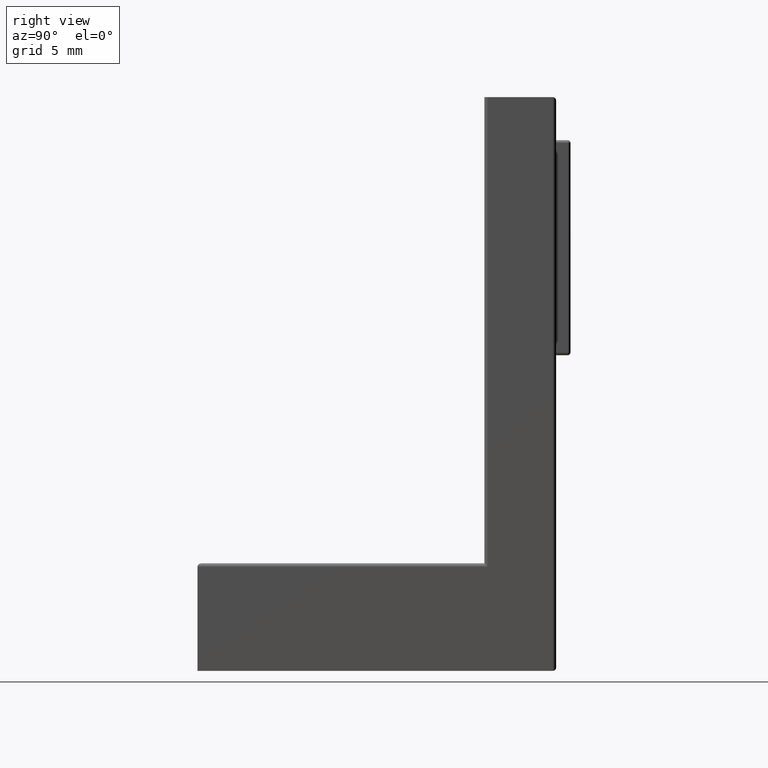
[diagram: clean part render]
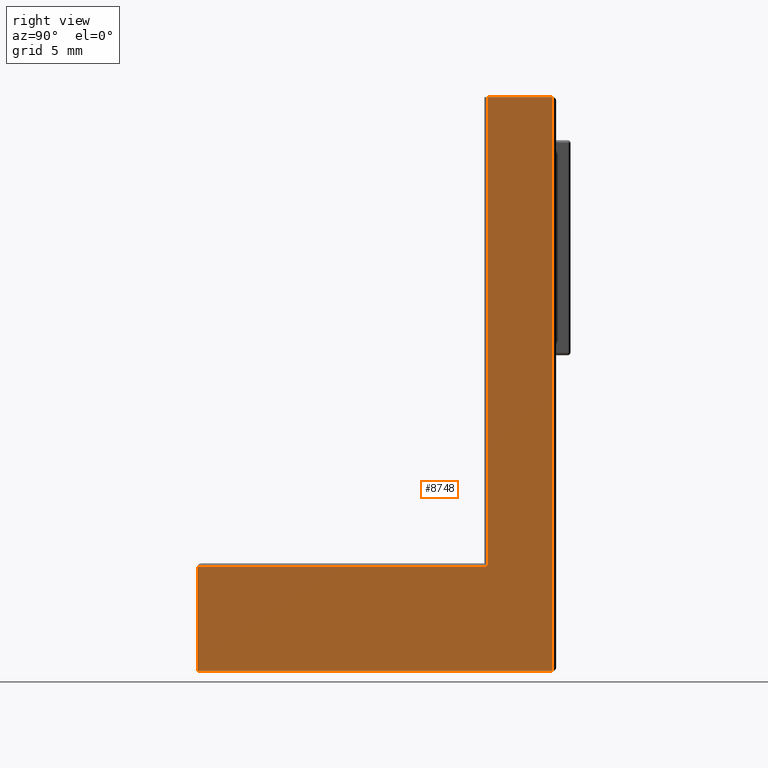
[diagram: same view with one face highlighted and labeled with its STEP entity id]
A machine part, right view. The second image highlights one B-rep face of the part: STEP entity #8748.
In plain terms, the highlighted planar face has unit normal (-1, 0, 0).
Its self-contained STEP definition (entity closure, byte-faithful):
#268 = EDGE_CURVE ( 'NONE', #6751, #10539, #9037, .T. ) ;
#351 = LINE ( 'NONE', #15017, #12426 ) ;
#473 = AXIS2_PLACEMENT_3D ( 'NONE', #12291, #11021, #768 ) ;
#640 = CARTESIAN_POINT ( 'NONE',  ( 9.000000000000000000, -25.00000000000000000, -3.061616997868383000E-015 ) ) ;
#768 = DIRECTION ( 'NONE',  ( 0.0000000000000000000, 0.0000000000000000000, 1.000000000000000000 ) ) ;
#1018 = CARTESIAN_POINT ( 'NONE',  ( 9.000000000000000000, 0.0000000000000000000, 0.0000000000000000000 ) ) ;
#1378 = CARTESIAN_POINT ( 'NONE',  ( 9.000000000000000000, -0.2500000000000000000, -3.061616997868383000E-017 ) ) ;
#1464 = LINE ( 'NONE', #3145, #11331 ) ;
#1817 = VERTEX_POINT ( 'NONE', #9101 ) ;
#1987 = CARTESIAN_POINT ( 'NONE',  ( 9.000000000000000000, -4.749999999999999100, 7.249999999999999100 ) ) ;
#2036 = EDGE_CURVE ( 'NONE', #2319, #6751, #351, .T. ) ;
#2319 = VERTEX_POINT ( 'NONE', #1987 ) ;
#2391 = DIRECTION ( 'NONE',  ( -0.0000000000000000000, 1.000000000000000000, 1.224646799147353200E-016 ) ) ;
#3124 = CARTESIAN_POINT ( 'NONE',  ( 9.000000000000000000, -4.750000000000000000, 40.00000000000000000 ) ) ;
#3145 = CARTESIAN_POINT ( 'NONE',  ( 9.000000000000000000, -0.2500000000000000000, 0.0000000000000000000 ) ) ;
#3567 = CARTESIAN_POINT ( 'NONE',  ( 9.000000000000000000, -25.00000000000000000, 7.249999999999996400 ) ) ;
#3646 = VERTEX_POINT ( 'NONE', #3124 ) ;
#3838 = VERTEX_POINT ( 'NONE', #1378 ) ;
#4622 = DIRECTION ( 'NONE',  ( 0.0000000000000000000, 0.0000000000000000000, 1.000000000000000000 ) ) ;
#4631 = ORIENTED_EDGE ( 'NONE', *, *, #14013, .T. ) ;
#4905 = ORIENTED_EDGE ( 'NONE', *, *, #2036, .T. ) ;
#5414 = EDGE_CURVE ( 'NONE', #3838, #1817, #1464, .T. ) ;
#5987 = LINE ( 'NONE', #8271, #15022 ) ;
#6121 = PLANE ( 'NONE',  #473 ) ;
#6124 = ORIENTED_EDGE ( 'NONE', *, *, #15973, .T. ) ;
#6334 = LINE ( 'NONE', #1018, #14150 ) ;
#6555 = CARTESIAN_POINT ( 'NONE',  ( 9.000000000000000000, -5.000000000000000000, 40.00000000000000000 ) ) ;
#6751 = VERTEX_POINT ( 'NONE', #3567 ) ;
#8249 = FACE_OUTER_BOUND ( 'NONE', #13712, .T. ) ;
#8271 = CARTESIAN_POINT ( 'NONE',  ( 9.000000000000000000, -4.749999999999999100, -1.267682540136897100E-016 ) ) ;
#8345 = VECTOR ( 'NONE', #9145, 1000.000000000000000 ) ;
#8489 = ORIENTED_EDGE ( 'NONE', *, *, #13568, .T. ) ;
#8621 = VECTOR ( 'NONE', #13559, 1000.000000000000000 ) ;
#8748 = ADVANCED_FACE ( 'NONE', ( #8249 ), #6121, .F. ) ;
#9037 = LINE ( 'NONE', #9517, #8621 ) ;
#9101 = CARTESIAN_POINT ( 'NONE',  ( 9.000000000000000000, -0.2500000000000002200, 40.00000000000000000 ) ) ;
#9145 = DIRECTION ( 'NONE',  ( -0.0000000000000000000, -1.000000000000000000, -0.0000000000000000000 ) ) ;
#9517 = CARTESIAN_POINT ( 'NONE',  ( 9.000000000000000000, -25.00000000000000000, 7.499999999999996400 ) ) ;
#9943 = LINE ( 'NONE', #6555, #8345 ) ;
#10539 = VERTEX_POINT ( 'NONE', #640 ) ;
#11021 = DIRECTION ( 'NONE',  ( -1.000000000000000000, 0.0000000000000000000, 0.0000000000000000000 ) ) ;
#11331 = VECTOR ( 'NONE', #4622, 1000.000000000000000 ) ;
#12286 = DIRECTION ( 'NONE',  ( 0.0000000000000000000, 2.668805347656626100E-017, -1.000000000000000000 ) ) ;
#12291 = CARTESIAN_POINT ( 'NONE',  ( 9.000000000000000000, 0.0000000000000000000, 0.0000000000000000000 ) ) ;
#12426 = VECTOR ( 'NONE', #16403, 1000.000000000000000 ) ;
#12878 = ORIENTED_EDGE ( 'NONE', *, *, #5414, .T. ) ;
#13559 = DIRECTION ( 'NONE',  ( 0.0000000000000000000, 0.0000000000000000000, -1.000000000000000000 ) ) ;
#13568 = EDGE_CURVE ( 'NONE', #1817, #3646, #9943, .T. ) ;
#13712 = EDGE_LOOP ( 'NONE', ( #4631, #12878, #8489, #6124, #4905, #14661 ) ) ;
#14013 = EDGE_CURVE ( 'NONE', #10539, #3838, #6334, .T. ) ;
#14150 = VECTOR ( 'NONE', #2391, 1000.000000000000000 ) ;
#14661 = ORIENTED_EDGE ( 'NONE', *, *, #268, .T. ) ;
#15017 = CARTESIAN_POINT ( 'NONE',  ( 9.000000000000000000, -1.257674520083185100E-015, 7.250000000000000000 ) ) ;
#15022 = VECTOR ( 'NONE', #12286, 1000.000000000000000 ) ;
#15973 = EDGE_CURVE ( 'NONE', #3646, #2319, #5987, .T. ) ;
#16403 = DIRECTION ( 'NONE',  ( 0.0000000000000000000, -1.000000000000000000, -1.734723475976806800E-016 ) ) ;